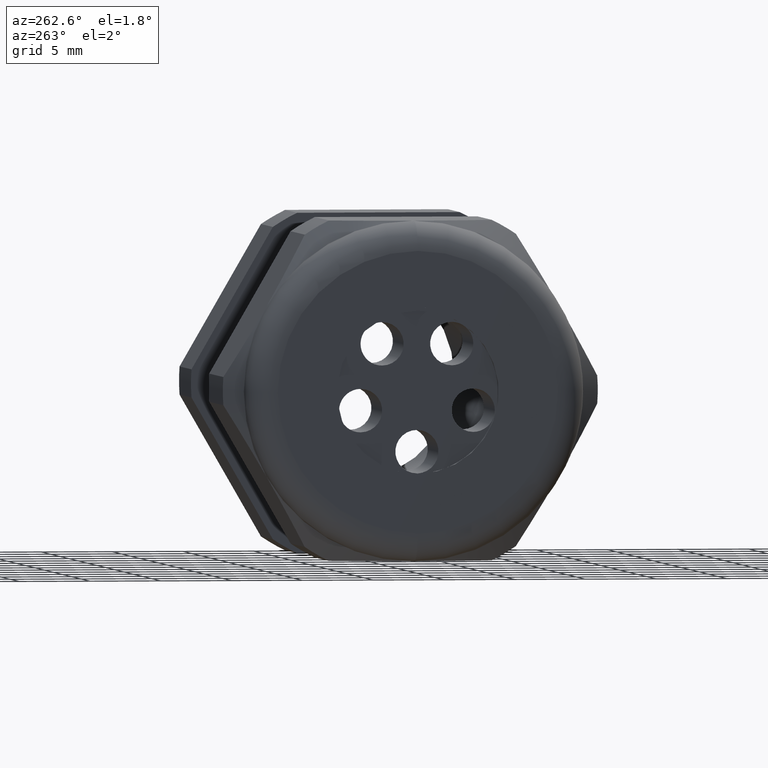
[diagram: clean part render]
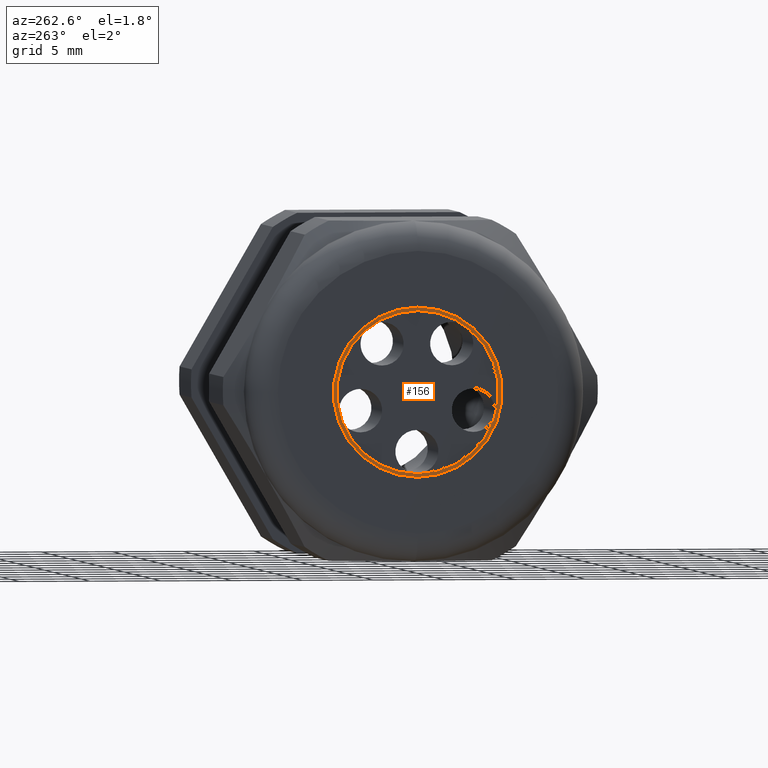
[diagram: same view with one face highlighted and labeled with its STEP entity id]
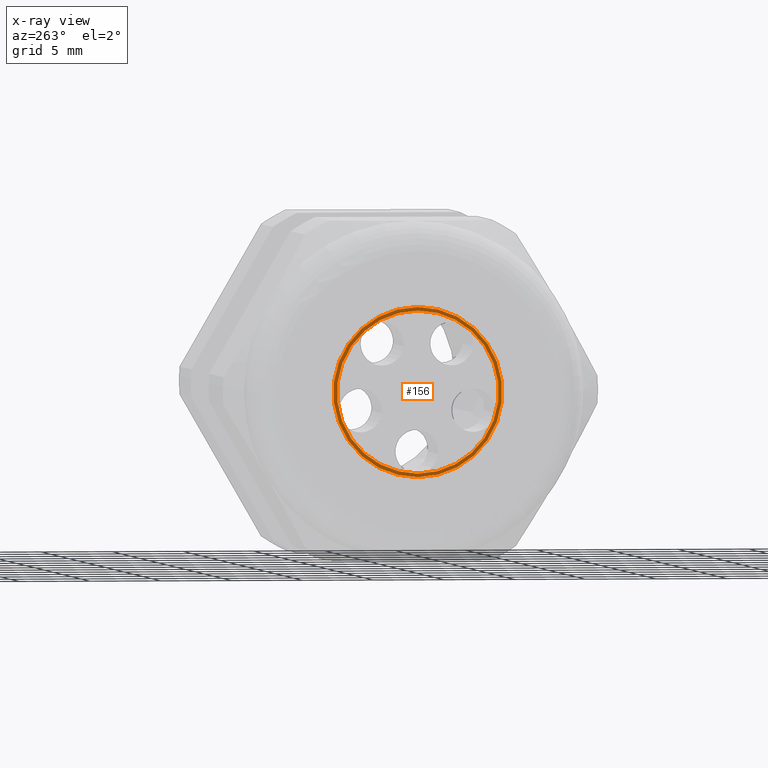
[diagram: x-ray of the same camera — body ghosted, the highlighted face saturated]
A machine part, auxiliary view. The second image highlights one B-rep face of the part: STEP entity #156.
The next image is the same camera in x-ray: the body ghosted, the highlighted face saturated — about 0% of this face is hidden behind the body in this view.
In plain terms, the highlighted planar face has unit normal (-1, 0, 0).
Its self-contained STEP definition (entity closure, byte-faithful):
#143 = ORIENTED_EDGE ( 'NONE', *, *, #148, .F. ) ;
#145 = ORIENTED_EDGE ( 'NONE', *, *, #535, .F. ) ;
#148 = EDGE_CURVE ( 'NONE', #536, #533, #2160, .T. ) ;
#151 = EDGE_CURVE ( 'NONE', #581, #584, #2155, .T. ) ;
#154 = EDGE_LOOP ( 'NONE', ( #143, #145 ) ) ;
#156 = ADVANCED_FACE ( 'NONE', ( #2150, #2149 ), #2148, .T. ) ;
#166 = ORIENTED_EDGE ( 'NONE', *, *, #151, .T. ) ;
#167 = ORIENTED_EDGE ( 'NONE', *, *, #583, .T. ) ;
#169 = EDGE_LOOP ( 'NONE', ( #167, #166 ) ) ;
#533 = VERTEX_POINT ( 'NONE', #2854 ) ;
#535 = EDGE_CURVE ( 'NONE', #533, #536, #2853, .T. ) ;
#536 = VERTEX_POINT ( 'NONE', #2848 ) ;
#581 = VERTEX_POINT ( 'NONE', #2910 ) ;
#583 = EDGE_CURVE ( 'NONE', #584, #581, #2909, .T. ) ;
#584 = VERTEX_POINT ( 'NONE', #2966 ) ;
#2144 = DIRECTION ( 'NONE',  ( 0.0000000000000000000, 0.0000000000000000000, 1.000000000000000000 ) ) ;
#2145 = DIRECTION ( 'NONE',  ( -1.000000000000000000, 0.0000000000000000000, 0.0000000000000000000 ) ) ;
#2146 = CARTESIAN_POINT ( 'NONE',  ( -1.409999999999999900, 0.0000000000000000000, 0.0000000000000000000 ) ) ;
#2147 = AXIS2_PLACEMENT_3D ( 'NONE', #2146, #2145, #2144 ) ;
#2148 = PLANE ( 'NONE',  #2147 ) ;
#2149 = FACE_OUTER_BOUND ( 'NONE', #169, .T. ) ;
#2150 = FACE_BOUND ( 'NONE', #154, .T. ) ;
#2151 = DIRECTION ( 'NONE',  ( 0.0000000000000000000, 0.0000000000000000000, 1.000000000000000000 ) ) ;
#2152 = DIRECTION ( 'NONE',  ( -1.000000000000000000, 0.0000000000000000000, 0.0000000000000000000 ) ) ;
#2153 = CARTESIAN_POINT ( 'NONE',  ( -1.409999999999999900, 0.0000000000000000000, 0.0000000000000000000 ) ) ;
#2154 = AXIS2_PLACEMENT_3D ( 'NONE', #2153, #2152, #2151 ) ;
#2155 = CIRCLE ( 'NONE', #2154, 0.2349999999999999900 ) ;
#2156 = DIRECTION ( 'NONE',  ( 0.0000000000000000000, 0.0000000000000000000, 1.000000000000000000 ) ) ;
#2157 = DIRECTION ( 'NONE',  ( -1.000000000000000000, 0.0000000000000000000, 0.0000000000000000000 ) ) ;
#2158 = CARTESIAN_POINT ( 'NONE',  ( -1.409999999999999900, 0.0000000000000000000, 0.0000000000000000000 ) ) ;
#2159 = AXIS2_PLACEMENT_3D ( 'NONE', #2158, #2157, #2156 ) ;
#2160 = CIRCLE ( 'NONE', #2159, 0.2249999999999999800 ) ;
#2848 = CARTESIAN_POINT ( 'NONE',  ( -1.409999999999999900, 0.0000000000000000000, 0.2249999999999999800 ) ) ;
#2849 = DIRECTION ( 'NONE',  ( 0.0000000000000000000, 0.0000000000000000000, 1.000000000000000000 ) ) ;
#2850 = DIRECTION ( 'NONE',  ( -1.000000000000000000, 0.0000000000000000000, 0.0000000000000000000 ) ) ;
#2851 = CARTESIAN_POINT ( 'NONE',  ( -1.409999999999999900, 0.0000000000000000000, 0.0000000000000000000 ) ) ;
#2852 = AXIS2_PLACEMENT_3D ( 'NONE', #2851, #2850, #2849 ) ;
#2853 = CIRCLE ( 'NONE', #2852, 0.2249999999999999800 ) ;
#2854 = CARTESIAN_POINT ( 'NONE',  ( -1.409999999999999900, 2.755455298081544500E-017, -0.2249999999999999800 ) ) ;
#2906 = DIRECTION ( 'NONE',  ( -1.000000000000000000, 0.0000000000000000000, 0.0000000000000000000 ) ) ;
#2907 = CARTESIAN_POINT ( 'NONE',  ( -1.409999999999999900, 0.0000000000000000000, 0.0000000000000000000 ) ) ;
#2908 = AXIS2_PLACEMENT_3D ( 'NONE', #2907, #2906, #2967 ) ;
#2909 = CIRCLE ( 'NONE', #2908, 0.2349999999999999900 ) ;
#2910 = CARTESIAN_POINT ( 'NONE',  ( -1.409999999999999900, 2.877919977996279800E-017, -0.2349999999999999900 ) ) ;
#2966 = CARTESIAN_POINT ( 'NONE',  ( -1.409999999999999900, 0.0000000000000000000, 0.2349999999999999900 ) ) ;
#2967 = DIRECTION ( 'NONE',  ( 0.0000000000000000000, 0.0000000000000000000, 1.000000000000000000 ) ) ;